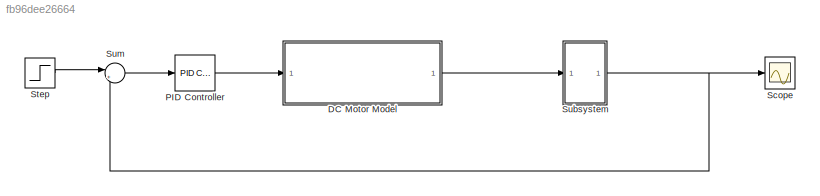
MODEL slx_fb96dee26664
KIND model
CONFIG AbsTol = auto
CONFIG EnableMultiTasking = off
CONFIG FixedStep = auto
CONFIG MaxStep = auto
CONFIG MinStep = auto
CONFIG RelTol = 1e-3
CONFIG SampleTimeConstraint = Unconstrained
CONFIG SolverName = ode45
CONFIG StartTime = 0.0
CONFIG StopTime = 10
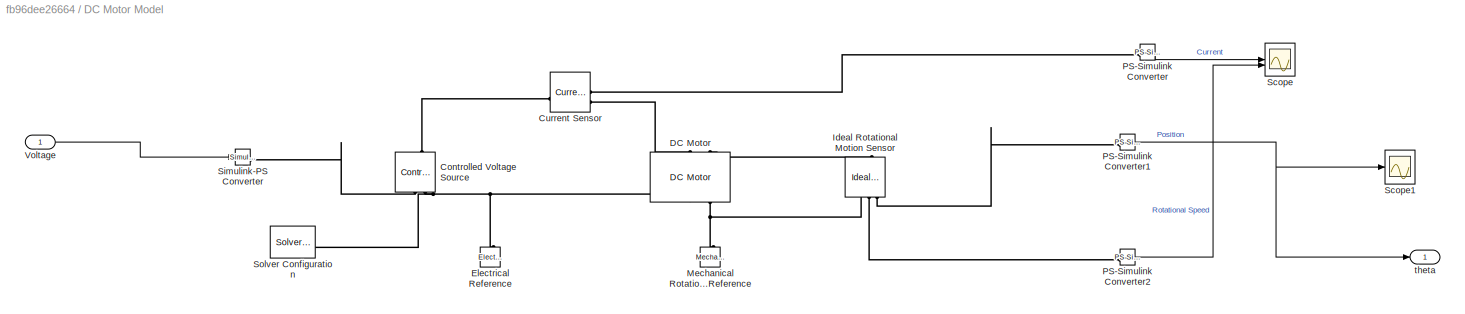
BLOCK [SubSystem] DC Motor Model
BLOCK [Reference] DC Motor Model/Controlled Voltage Source  REF=fl_lib/Electrical/Electrical Sources/Controlled Voltage
Source
  NameLocation = right
  SourceBlock = fl_lib/Electrical/Electrical Sources/Controlled Voltage\nSource
  SourceType = Controlled Voltage\nSource
BLOCK [Reference] DC Motor Model/Current Sensor  REF=fl_lib/Electrical/Electrical Sensors/Current Sensor
  SourceBlock = fl_lib/Electrical/Electrical Sensors/Current Sensor
  SourceType = Current Sensor
BLOCK [Reference] DC Motor Model/DC Motor  REF=ee_lib/Electromechanical/Brushed Motors/DC Motor
  NameLocation = right
  SourceBlock = ee_lib/Electromechanical/Brushed Motors/DC Motor
  SourceType = DC Motor
BLOCK [Reference] DC Motor Model/Electrical Reference  REF=fl_lib/Electrical/Electrical Elements/Electrical Reference
  NameLocation = right
  SourceBlock = fl_lib/Electrical/Electrical Elements/Electrical Reference
  SourceType = Electrical Reference
BLOCK [Reference] DC Motor Model/Ideal Rotational Motion Sensor  REF=fl_lib/Mechanical/Mechanical Sensors/Ideal Rotational
Motion Sensor
  NameLocation = right
  SourceBlock = fl_lib/Mechanical/Mechanical Sensors/Ideal Rotational\nMotion Sensor
  SourceType = Ideal Rotational\nMotion Sensor
BLOCK [Reference] DC Motor Model/Mechanical Rotational Reference  REF=fl_lib/Mechanical/Rotational Elements/Mechanical
Rotational Reference
  NameLocation = right
  SourceBlock = fl_lib/Mechanical/Rotational Elements/Mechanical\nRotational Reference
  SourceType = Mechanical\nRotational Reference
BLOCK [Reference] DC Motor Model/PS-Simulink Converter  REF=nesl_utility/PS-Simulink
Converter
  SourceBlock = nesl_utility/PS-Simulink\nConverter
  SourceType = PS-Simulink\nConverter
BLOCK [Reference] DC Motor Model/PS-Simulink Converter1  REF=nesl_utility/PS-Simulink
Converter
  SourceBlock = nesl_utility/PS-Simulink\nConverter
  SourceType = PS-Simulink\nConverter
BLOCK [Reference] DC Motor Model/PS-Simulink Converter2  REF=nesl_utility/PS-Simulink
Converter
  SourceBlock = nesl_utility/PS-Simulink\nConverter
  SourceType = PS-Simulink\nConverter
BLOCK [Scope] DC Motor Model/Scope
  Floating = off
  NumInputPorts = 2
  ScopeSpecificationString = Simulink.scopes.TimeScopeBlockCfg('CurrentConfiguration', extmgr.ConfigurationSet(extmgr.Configuration('Core','General UI',true),extmgr.Configuration('Core','Source UI',true),extmgr.Configuration('Sources','WiredSimulink',true),extmgr.Configuration('Visuals','Time Domain',true,'SerializedDisplays',{struct('MinYLimReal','-270167237886099602998697435880939580184068096.00000','MaxYLimReal','243150514...<+2158ch>
BLOCK [Scope] DC Motor Model/Scope1
  Floating = off
  NumInputPorts = 1
  ScopeSpecificationString = Simulink.scopes.TimeScopeBlockCfg('CurrentConfiguration', extmgr.ConfigurationSet(extmgr.Configuration('Core','General UI',true),extmgr.Configuration('Core','Source UI',true),extmgr.Configuration('Sources','WiredSimulink',true,'DataLoggingVariableName','ScopeData1'),extmgr.Configuration('Visuals','Time Domain',true,'SerializedDisplays',{struct('MinYLimReal','-85.30829','MaxYLimReal','767.77465','Y...<+1427ch>
BLOCK [Reference] DC Motor Model/Simulink-PS Converter  REF=nesl_utility/Simulink-PS
Converter
  SourceBlock = nesl_utility/Simulink-PS\nConverter
  SourceType = Simulink-PS\nConverter
BLOCK [Reference] DC Motor Model/Solver Configuration  REF=nesl_utility/Solver
Configuration
  SourceBlock = nesl_utility/Solver\nConfiguration
  SourceType = Solver\nConfiguration
BLOCK [Inport] DC Motor Model/Voltage
BLOCK [Outport] DC Motor Model/theta
BLOCK [Reference] PID Controller  REF=slpidlib/PID Controller
  LibrarySourceBlock = simulink/Continuous/PID Controller
  SourceBlock = slpidlib/PID Controller
  SourceType = PID 1dof
BLOCK [Scope] Scope
  Floating = off
  NumInputPorts = 1
  ScopeSpecificationString = Simulink.scopes.TimeScopeBlockCfg('CurrentConfiguration', extmgr.ConfigurationSet(extmgr.Configuration('Core','General UI',true),extmgr.Configuration('Core','Source UI',true),extmgr.Configuration('Sources','WiredSimulink',true,'DataLoggingVariableName','ScopeData1'),extmgr.Configuration('Visuals','Time Domain',true,'SerializedDisplays',{struct('MinYLimReal','-0.18618','MaxYLimReal','2.98719','YLab...<+1416ch>
BLOCK [Step] Step
  After = 0.5
  SampleTime = 0
  Time = 0
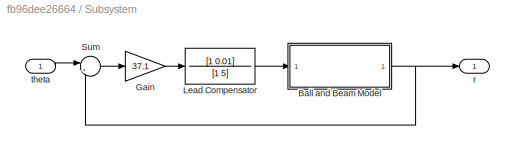
BLOCK [SubSystem] Subsystem
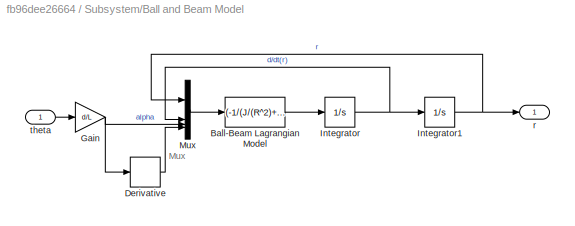
BLOCK [SubSystem] Subsystem/Ball and Beam Model
BLOCK [Fcn] Subsystem/Ball and Beam Model/Ball-Beam Lagrangian Model
  Expr = (-1/(J/(R^2)+m))*(m*g*sin(u[3])-m*u[1]*(u[4])^2)
BLOCK [Derivative] Subsystem/Ball and Beam Model/Derivative
BLOCK [Gain] Subsystem/Ball and Beam Model/Gain
  Gain = d/L
BLOCK [Integrator] Subsystem/Ball and Beam Model/Integrator
BLOCK [Integrator] Subsystem/Ball and Beam Model/Integrator1
BLOCK [Mux] Subsystem/Ball and Beam Model/Mux
  DisplayOption = bar
BLOCK [Outport] Subsystem/Ball and Beam Model/r
BLOCK [Inport] Subsystem/Ball and Beam Model/theta
BLOCK [Gain] Subsystem/Gain
  Gain = 37.1
BLOCK [TransferFcn] Subsystem/Lead Compensator
  Denominator = [1 5]
  Numerator = [1 0.01]
BLOCK [Sum] Subsystem/Sum
  Inputs = |+-
BLOCK [Outport] Subsystem/r
BLOCK [Inport] Subsystem/theta
BLOCK [Sum] Sum
  Inputs = |+-
ANNOTATION Subsystem/Ball and Beam Model: Mux
NET DC Motor Model/PS-Simulink Converter1:1 -> DC Motor Model/Scope1:1, DC Motor Model/theta:1
LINE DC Motor Model/PS-Simulink Converter2:1 -> DC Motor Model/Scope:2
LINE DC Motor Model/PS-Simulink Converter:1 -> DC Motor Model/Scope:1
LINE DC Motor Model/Voltage:1 -> DC Motor Model/Simulink-PS Converter:1
LINE DC Motor Model:1 -> Subsystem:1
LINE PID Controller:1 -> DC Motor Model:1
LINE Step:1 -> Sum:1
LINE Subsystem/Ball and Beam Model/Ball-Beam Lagrangian Model:1 -> Subsystem/Ball and Beam Model/Integrator:1
LINE Subsystem/Ball and Beam Model/Derivative:1 -> Subsystem/Ball and Beam Model/Mux:4
NET Subsystem/Ball and Beam Model/Gain:1 -> Subsystem/Ball and Beam Model/Derivative:1, Subsystem/Ball and Beam Model/Mux:3
NET Subsystem/Ball and Beam Model/Integrator1:1 -> Subsystem/Ball and Beam Model/Mux:1, Subsystem/Ball and Beam Model/r:1
NET Subsystem/Ball and Beam Model/Integrator:1 -> Subsystem/Ball and Beam Model/Integrator1:1, Subsystem/Ball and Beam Model/Mux:2
LINE Subsystem/Ball and Beam Model/Mux:1 -> Subsystem/Ball and Beam Model/Ball-Beam Lagrangian Model:1
LINE Subsystem/Ball and Beam Model/theta:1 -> Subsystem/Ball and Beam Model/Gain:1
NET Subsystem/Ball and Beam Model:1 -> Subsystem/Sum:2, Subsystem/r:1
LINE Subsystem/Gain:1 -> Subsystem/Lead Compensator:1
LINE Subsystem/Lead Compensator:1 -> Subsystem/Ball and Beam Model:1
LINE Subsystem/Sum:1 -> Subsystem/Gain:1
LINE Subsystem/theta:1 -> Subsystem/Sum:1
NET Subsystem:1 -> Scope:1, Sum:2
LINE Sum:1 -> PID Controller:1
PLINE DC Motor Model/Controlled Voltage Source:LConn1 -- DC Motor Model/Current Sensor:LConn1
PLINE DC Motor Model/Controlled Voltage Source:RConn1 -- DC Motor Model/Simulink-PS Converter:RConn1
PNET net1: DC Motor Model/Controlled Voltage Source:RConn2 -- DC Motor Model/DC Motor:RConn1 -- DC Motor Model/Electrical Reference:LConn1 -- DC Motor Model/Solver Configuration:RConn1
PLINE DC Motor Model/Current Sensor:RConn1 -- DC Motor Model/PS-Simulink Converter:LConn1
PLINE DC Motor Model/Current Sensor:RConn2 -- DC Motor Model/DC Motor:LConn1
PLINE DC Motor Model/DC Motor:LConn2 -- DC Motor Model/Ideal Rotational Motion Sensor:LConn1
PNET net2: DC Motor Model/DC Motor:RConn2 -- DC Motor Model/Ideal Rotational Motion Sensor:RConn1 -- DC Motor Model/Mechanical Rotational Reference:LConn1
PLINE DC Motor Model/Ideal Rotational Motion Sensor:RConn2 -- DC Motor Model/PS-Simulink Converter2:LConn1
PLINE DC Motor Model/Ideal Rotational Motion Sensor:RConn3 -- DC Motor Model/PS-Simulink Converter1:LConn1
note: NET lines group one-source signal fan-out (src -> all destinations, sorted); 1:1 wires keep LINE; PNET lines group multi-terminal physical nets as a canonical sorted terminal list (undirected conserving connections); 2-terminal nets keep the pairwise PLINE form
